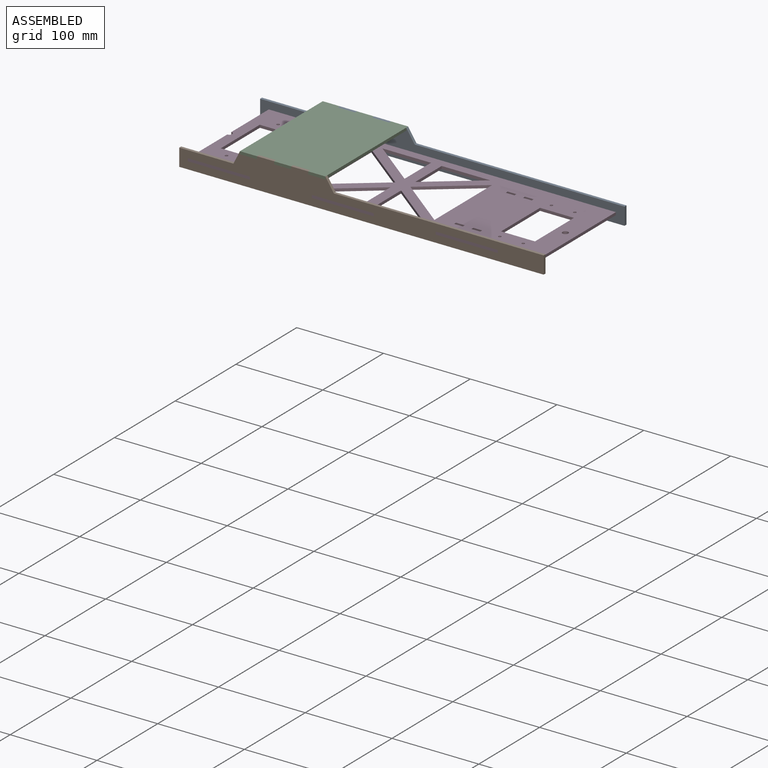
[diagram: assembled view]
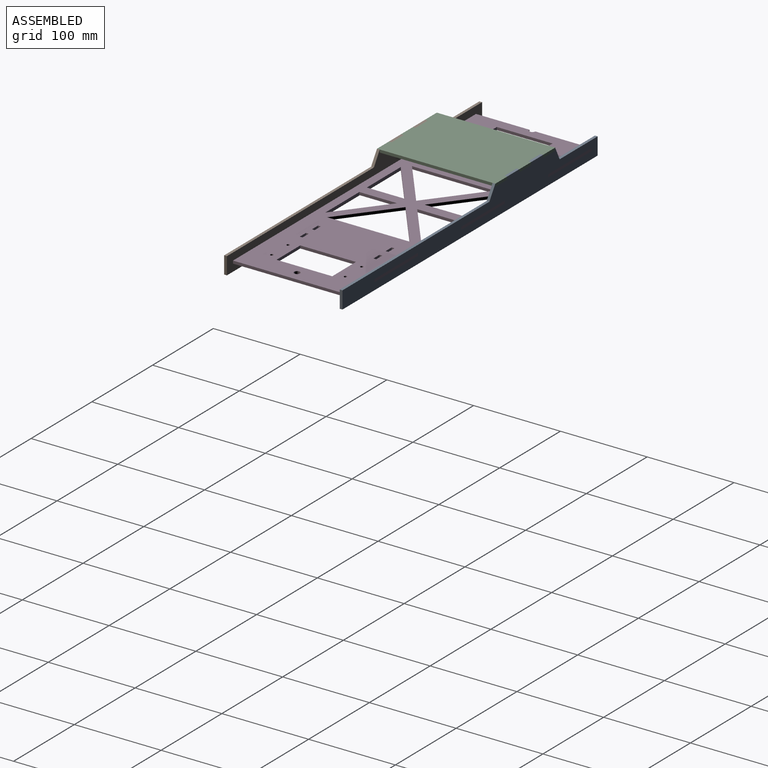
[diagram: assembled view, second angle]
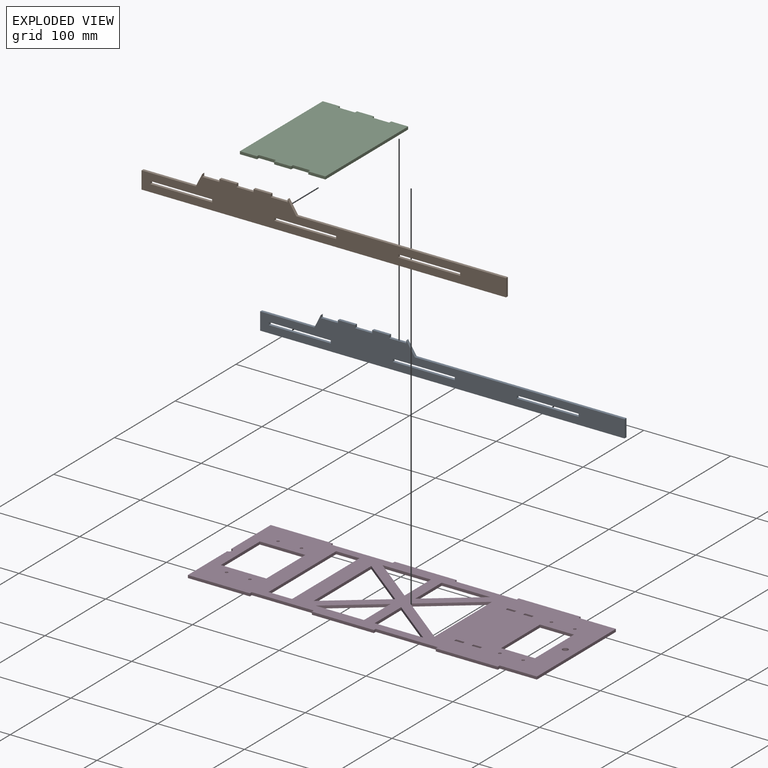
[diagram: exploded view]
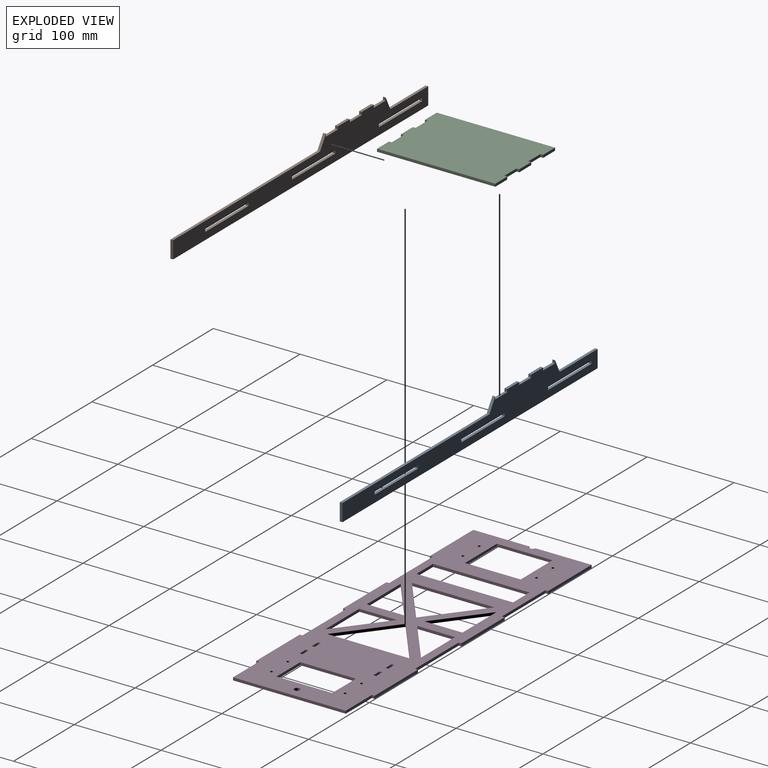
[diagram: exploded view, second angle]
ASSEMBLY  parts=4 mates=3
PART A: 32 faces, bbox 420x3.2x35 mm
  f0: plane 3.18x3.18mm, normal (1,0,0), area 10.1mm2, adj f1,f29,f30,f31
  f1: plane 71.43x3.18mm, normal (0,0,-1), area 226.8mm2, adj f0,f2,f30,f31
  f2: plane 3.18x3.18mm, normal (-1,0,0), area 10.1mm2, adj f1,f29,f30,f31
  f3: plane 71.43x3.18mm, normal (0,0,1), area 226.8mm2, adj f4,f26,f30,f31
  f4: plane 3.18x3.18mm, normal (1,0,0), area 10.1mm2, adj f3,f5,f30,f31
  f5: plane 71.43x3.18mm, normal (0,0,-1), area 226.8mm2, adj f4,f26,f30,f31
  f6: plane 3.18x3.18mm, normal (-1,0,0), area 10.1mm2, adj f7,f27,f30,f31
  f7: plane 71.43x3.18mm, normal (0,0,1), area 226.8mm2, adj f6,f8,f30,f31
  f8: plane 3.18x3.18mm, normal (1,0,0), area 10.1mm2, adj f7,f27,f30,f31
  f9: plane 19.69x3.18mm, normal (0,0,1), area 62.5mm2, adj f10,f28,f30,f31
  f10: plane 3.18x3.18mm, normal (1,0,0), area 10.1mm2, adj f9,f11,f30,f31
  f11: plane 15x7.49mm, normal (-0.89,0,0.45), area 53.2mm2, adj f10,f12,f30,f31
  f12: plane 62.51x3.18mm, normal (0,0,1), area 198.5mm2, adj f11,f13,f30,f31
  f13: plane 20x3.18mm, normal (-1,0,0), area 63.5mm2, adj f12,f14,f30,f31
  f14: plane 420x3.18mm, normal (0,0,-1), area 1333.5mm2, adj f13,f15,f30,f31
  f15: plane 20x3.18mm, normal (1,0,0), area 63.5mm2, adj f14,f16,f30,f31
  f16: plane 241.89x3.18mm, normal (0,0,1), area 768mm2, adj f15,f17,f30,f31
  f17: plane 15x9.68mm, normal (0.84,0,0.54), area 56.7mm2, adj f16,f18,f30,f31
  f18: plane 3.18x3.18mm, normal (-1,0,0), area 10.1mm2, adj f17,f19,f30,f31
  f19: plane 19.69x3.18mm, normal (0,0,1), area 62.5mm2, adj f18,f20,f30,f31
  f20: plane 3.18x3.18mm, normal (1,0,0), area 10.1mm2, adj f19,f21,f30,f31
  f21: plane 19.69x3.18mm, normal (0,0,1), area 62.5mm2, adj f20,f22,f30,f31
  f22: plane 3.18x3.18mm, normal (-1,0,0), area 10.1mm2, adj f21,f23,f30,f31
  f23: plane 19.69x3.18mm, normal (0,0,1), area 62.5mm2, adj f22,f24,f30,f31
  f24: plane 3.18x3.18mm, normal (1,0,0), area 10.1mm2, adj f23,f25,f30,f31
  f25: plane 19.69x3.18mm, normal (0,0,1), area 62.5mm2, adj f24,f28,f30,f31
  f26: plane 3.18x3.18mm, normal (-1,0,0), area 10.1mm2, adj f3,f5,f30,f31
  f27: plane 71.43x3.18mm, normal (0,0,-1), area 226.8mm2, adj f6,f8,f30,f31
  f28: plane 3.18x3.18mm, normal (-1,0,0), area 10.1mm2, adj f9,f25,f30,f31
  f29: plane 71.43x3.18mm, normal (0,0,1), area 226.8mm2, adj f0,f2,f30,f31
  f30: plane 420x35mm, normal (0,-1,0), area 9137.3mm2, adj f0,f1,f2,f3,f4,f5,f6,f7
  f31: plane 420x35mm, normal (0,1,0), area 9137.3mm2, adj f0,f1,f2,f3,f4,f5,f6,f7
PART B: same geometry as A
PART C: 22 faces, bbox 98.4x136.4x3.2 mm
  f0: plane 19.69x3.18mm, normal (0,1,0), area 62.5mm2, adj f1,f19,f20,f21
  f1: plane 3.18x3.18mm, normal (-1,0,0), area 10.1mm2, adj f0,f2,f20,f21
  f2: plane 19.69x3.18mm, normal (0,1,0), area 62.5mm2, adj f1,f3,f20,f21
  f3: plane 3.18x3.18mm, normal (1,0,0), area 10.1mm2, adj f2,f4,f20,f21
  f4: plane 19.69x3.18mm, normal (0,1,0), area 62.5mm2, adj f3,f5,f20,f21
  f5: plane 136.35x3.18mm, normal (-1,0,0), area 432.9mm2, adj f4,f6,f20,f21
  f6: plane 19.69x3.18mm, normal (0,-1,0), area 62.5mm2, adj f5,f7,f20,f21
  f7: plane 3.18x3.18mm, normal (1,0,0), area 10.1mm2, adj f6,f8,f20,f21
  f8: plane 19.69x3.18mm, normal (0,-1,0), area 62.5mm2, adj f7,f9,f20,f21
  f9: plane 3.18x3.18mm, normal (-1,0,0), area 10.1mm2, adj f8,f10,f20,f21
  f10: plane 19.69x3.18mm, normal (0,-1,0), area 62.5mm2, adj f9,f11,f20,f21
  f11: plane 3.18x3.18mm, normal (1,0,0), area 10.1mm2, adj f10,f12,f20,f21
  f12: plane 19.69x3.18mm, normal (0,-1,0), area 62.5mm2, adj f11,f13,f20,f21
  f13: plane 3.18x3.18mm, normal (-1,0,0), area 10.1mm2, adj f12,f14,f20,f21
  f14: plane 19.69x3.18mm, normal (0,-1,0), area 62.5mm2, adj f13,f15,f20,f21
  f15: plane 136.35x3.18mm, normal (1,0,0), area 432.9mm2, adj f14,f16,f20,f21
  f16: plane 19.69x3.18mm, normal (0,1,0), area 62.5mm2, adj f15,f17,f20,f21
  f17: plane 3.18x3.18mm, normal (-1,0,0), area 10.1mm2, adj f16,f18,f20,f21
  f18: plane 19.69x3.18mm, normal (0,1,0), area 62.5mm2, adj f17,f19,f20,f21
  f19: plane 3.18x3.18mm, normal (1,0,0), area 10.1mm2, adj f0,f18,f20,f21
  f20: plane 136.35x98.43mm, normal (0,0,1), area 13170.2mm2, adj f0,f1,f2,f3,f4,f5,f6,f7
  f21: plane 136.35x98.43mm, normal (0,0,-1), area 13170.2mm2, adj f0,f1,f2,f3,f4,f5,f6,f7
PART D: 83 faces, bbox 400x3.2x136.4 mm
  f0: plane 64.2x3.18mm, normal (1,0,0), area 203.8mm2, adj f1,f80,f81,f82
  f1: plane 52.42x3.18mm, normal (0,0,-1), area 166.4mm2, adj f0,f2,f81,f82
  f2: plane 64.2x3.18mm, normal (-1,0,0), area 203.8mm2, adj f1,f80,f81,f82
  f3: plane 64.2x3.18mm, normal (1,0,0), area 203.8mm2, adj f4,f58,f81,f82
  f4: plane 39.06x3.18mm, normal (0,0,-1), area 124mm2, adj f3,f5,f81,f82
  f5: plane 64.2x3.18mm, normal (-1,0,0), area 203.8mm2, adj f4,f58,f81,f82
  f6: plane 111.26x3.18mm, normal (1,0,0), area 353.2mm2, adj f7,f59,f81,f82
  f7: plane 27.1x3.18mm, normal (0,0,-1), area 86mm2, adj f6,f8,f81,f82
  f8: plane 111.26x3.18mm, normal (-1,0,0), area 353.2mm2, adj f7,f59,f81,f82
  f9: plane 10x3.18mm, normal (0,0,-1), area 31.7mm2, adj f10,f60,f81,f82
  f10: plane 3.18x3.18mm, normal (-1,0,0), area 10.1mm2, adj f9,f11,f81,f82
  f11: plane 10x3.18mm, normal (0,0,1), area 31.7mm2, adj f10,f60,f81,f82
  f12: plane 10x3.18mm, normal (0,0,1), area 31.8mm2, adj f13,f61,f81,f82
  f13: plane 3.18x3.18mm, normal (1,0,0), area 10.1mm2, adj f12,f14,f81,f82
  f14: plane 10x3.18mm, normal (0,0,-1), area 31.8mm2, adj f13,f61,f81,f82
  f15: plane 64.87x3.18mm, normal (-1,0,0), area 206mm2, adj f16,f66,f81,f82
  f16: cylinder r=3.3mm len=6.6mm, axis (0,1,0), area 32.9mm2, adj f15,f17,f81,f82
  f17: plane 64.87x3.18mm, normal (-1,0,0), area 206mm2, adj f16,f18,f81,f82
  f18: plane 71.43x3.18mm, normal (0,0,-1), area 226.8mm2, adj f17,f19,f81,f82
  f19: plane 3.18x3.18mm, normal (1,0,0), area 10.1mm2, adj f18,f20,f81,f82
  f20: plane 71.43x3.18mm, normal (0,0,-1), area 226.8mm2, adj f19,f21,f81,f82
  f21: plane 3.18x3.18mm, normal (-1,0,0), area 10.1mm2, adj f20,f22,f81,f82
  f22: plane 71.43x3.18mm, normal (0,0,-1), area 226.8mm2, adj f21,f23,f81,f82
  f23: plane 3.18x3.18mm, normal (1,0,0), area 10.1mm2, adj f22,f24,f81,f82
  f24: plane 71.43x3.18mm, normal (0,0,-1), area 226.8mm2, adj f23,f25,f81,f82
  f25: plane 3.18x3.18mm, normal (-1,0,0), area 10.1mm2, adj f24,f26,f81,f82
  f26: plane 71.43x3.18mm, normal (0,0,-1), area 226.8mm2, adj f25,f27,f81,f82
  f27: plane 3.18x3.18mm, normal (1,0,0), area 10.1mm2, adj f26,f28,f81,f82
  f28: plane 42.86x3.18mm, normal (0,0,-1), area 136.1mm2, adj f27,f29,f81,f82
  f29: plane 130x3.18mm, normal (1,0,0), area 412.7mm2, adj f28,f30,f81,f82
  f30: plane 42.86x3.18mm, normal (0,0,1), area 136.1mm2, adj f29,f31,f81,f82
  f31: plane 3.18x3.18mm, normal (1,0,0), area 10.1mm2, adj f30,f32,f81,f82
  f32: plane 71.43x3.18mm, normal (0,0,1), area 226.8mm2, adj f31,f33,f81,f82
  f33: plane 3.18x3.18mm, normal (-1,0,0), area 10.1mm2, adj f32,f34,f81,f82
  f34: plane 71.43x3.18mm, normal (0,0,1), area 226.8mm2, adj f33,f35,f81,f82
  f35: plane 3.18x3.18mm, normal (1,0,0), area 10.1mm2, adj f34,f36,f81,f82
  f36: plane 71.43x3.18mm, normal (0,0,1), area 226.8mm2, adj f35,f37,f81,f82
  f37: plane 3.18x3.18mm, normal (-1,0,0), area 10.1mm2, adj f36,f38,f81,f82
  f38: plane 71.43x3.18mm, normal (0,0,1), area 226.8mm2, adj f37,f39,f81,f82
  f39: plane 3.18x3.18mm, normal (1,0,0), area 10.1mm2, adj f38,f66,f81,f82
  f40: plane 3.18x3.18mm, normal (-1,0,0), area 10.1mm2, adj f41,f72,f81,f82
  f41: plane 10x3.18mm, normal (0,0,1), area 31.7mm2, adj f40,f42,f81,f82
  f42: plane 3.18x3.18mm, normal (1,0,0), area 10.1mm2, adj f41,f72,f81,f82
  f43: plane 3.18x3.18mm, normal (1,0,0), area 10.1mm2, adj f44,f73,f81,f82
  f44: plane 10x3.18mm, normal (0,0,-1), area 31.8mm2, adj f43,f45,f81,f82
  f45: plane 3.18x3.18mm, normal (-1,0,0), area 10.1mm2, adj f44,f73,f81,f82
  f46: plane 55.91x3.18mm, normal (0,0,-1), area 177.5mm2, adj f47,f74,f81,f82
  f47: plane 55.91x43.58mm, normal (-0.61,0,0.79), area 225.1mm2, adj f46,f74,f81,f82
  f48: plane 55.91x3.18mm, normal (0,0,-1), area 177.5mm2, adj f49,f75,f81,f82
  f49: plane 43.58x3.18mm, normal (-1,0,0), area 138.4mm2, adj f48,f75,f81,f82
  f50: plane 60.98x47.53mm, normal (-0.61,0,0.79), area 245.5mm2, adj f51,f76,f81,f82
  f51: plane 95.06x3.18mm, normal (1,0,0), area 301.8mm2, adj f50,f76,f81,f82
  f52: plane 43.58x3.18mm, normal (-1,0,0), area 138.4mm2, adj f53,f77,f81,f82
  f53: plane 55.91x3.18mm, normal (0,0,1), area 177.5mm2, adj f52,f77,f81,f82
  f54: plane 55.91x43.58mm, normal (-0.61,0,-0.79), area 225.1mm2, adj f55,f78,f81,f82
  f55: plane 55.91x3.18mm, normal (0,0,1), area 177.5mm2, adj f54,f78,f81,f82
  f56: plane 95.06x3.18mm, normal (-1,0,0), area 301.8mm2, adj f57,f79,f81,f82
  f57: plane 60.98x47.53mm, normal (0.61,0,0.79), area 245.5mm2, adj f56,f79,f81,f82
  f58: plane 39.06x3.18mm, normal (0,0,1), area 124mm2, adj f3,f5,f81,f82
  f59: plane 27.1x3.18mm, normal (0,0,1), area 86mm2, adj f6,f8,f81,f82
  f60: plane 3.18x3.18mm, normal (1,0,0), area 10.1mm2, adj f9,f11,f81,f82
  f61: plane 3.18x3.18mm, normal (-1,0,0), area 10.1mm2, adj f12,f14,f81,f82
  f62: cylinder r=1.64mm len=3.28mm, axis (0,1,0), area 32.7mm2, adj f81,f82
  f63: cylinder r=1.64mm len=3.28mm, axis (0,1,0), area 32.7mm2, adj f81,f82
  f64: cylinder r=1.64mm len=3.28mm, axis (0,1,0), area 32.7mm2, adj f81,f82
  f65: cylinder r=1.64mm len=3.28mm, axis (0,1,0), area 32.7mm2, adj f81,f82
  f66: plane 71.43x3.18mm, normal (0,0,1), area 226.8mm2, adj f15,f39,f81,f82
  f67: cylinder r=3.3mm len=6.6mm, axis (0,1,0), area 65.9mm2, adj f81,f82
  f68: cylinder r=1.64mm len=3.28mm, axis (0,1,0), area 32.7mm2, adj f81,f82
  f69: cylinder r=1.64mm len=3.28mm, axis (0,1,0), area 32.7mm2, adj f81,f82
  f70: cylinder r=1.64mm len=3.28mm, axis (0,1,0), area 32.7mm2, adj f81,f82
  f71: cylinder r=1.64mm len=3.28mm, axis (0,1,0), area 32.7mm2, adj f81,f82
  f72: plane 10x3.18mm, normal (0,0,-1), area 31.7mm2, adj f40,f42,f81,f82
  f73: plane 10x3.18mm, normal (0,0,1), area 31.8mm2, adj f43,f45,f81,f82
  f74: plane 43.58x3.18mm, normal (1,0,0), area 138.4mm2, adj f46,f47,f81,f82
  f75: plane 55.91x43.58mm, normal (0.61,0,0.79), area 225.1mm2, adj f48,f49,f81,f82
  f76: plane 60.98x47.53mm, normal (-0.61,0,-0.79), area 245.5mm2, adj f50,f51,f81,f82
  f77: plane 55.91x43.58mm, normal (0.61,0,-0.79), area 225.1mm2, adj f52,f53,f81,f82
  f78: plane 43.58x3.18mm, normal (1,0,0), area 138.4mm2, adj f54,f55,f81,f82
  f79: plane 60.98x47.53mm, normal (0.61,0,-0.79), area 245.5mm2, adj f56,f57,f81,f82
  f80: plane 52.42x3.18mm, normal (0,0,1), area 166.4mm2, adj f0,f2,f81,f82
  f81: plane 400x136.35mm, normal (0,-1,0), area 33556mm2, adj f0,f1,f2,f3,f4,f5,f6,f7
  f82: plane 400x136.35mm, normal (0,1,0), area 33556mm2, adj f0,f1,f2,f3,f4,f5,f6,f7
PLACE A t=(-205.07,7.5,63.54)mm
PLACE B t=(-205.07,-125.68,63.54)mm
PLACE C t=(-345.85,-60.68,85.37)mm
PLACE D rot(axis=(1,0,0),90deg) t=(-177.22,-45.88,65.13)mm
MATE fastened B.f3 <-> D.f81  axis (0,0,1) through (-383.64,-128.85,61.95)mm
MATE fastened A.f27 <-> D.f82  axis (0,0,-1) through (-97.92,7.5,65.13)mm
MATE fastened C.f21 <-> B.f9  axis (0,0,-1) through (-395.07,-128.85,85.37)mm
